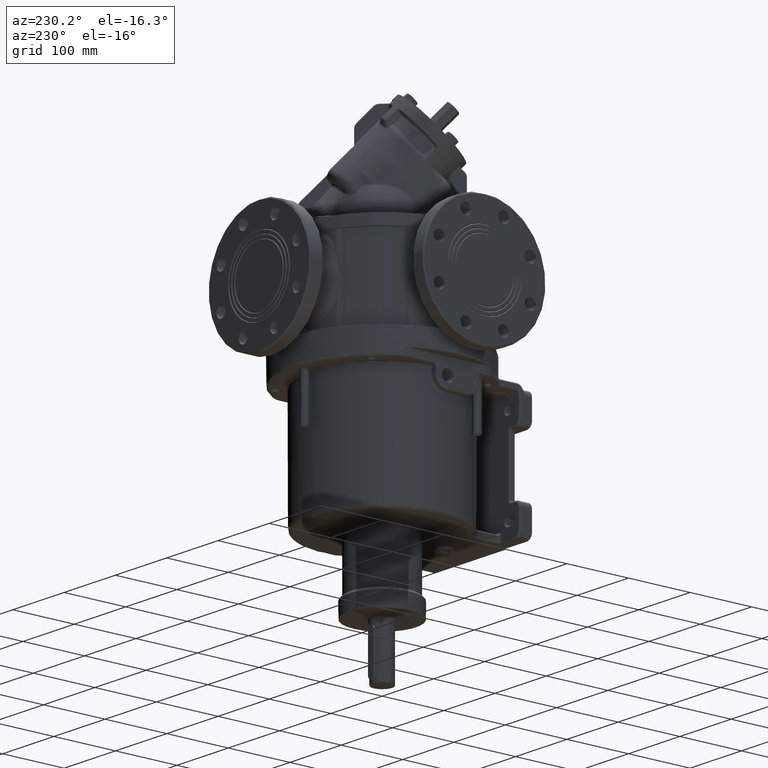
[diagram: clean part render]
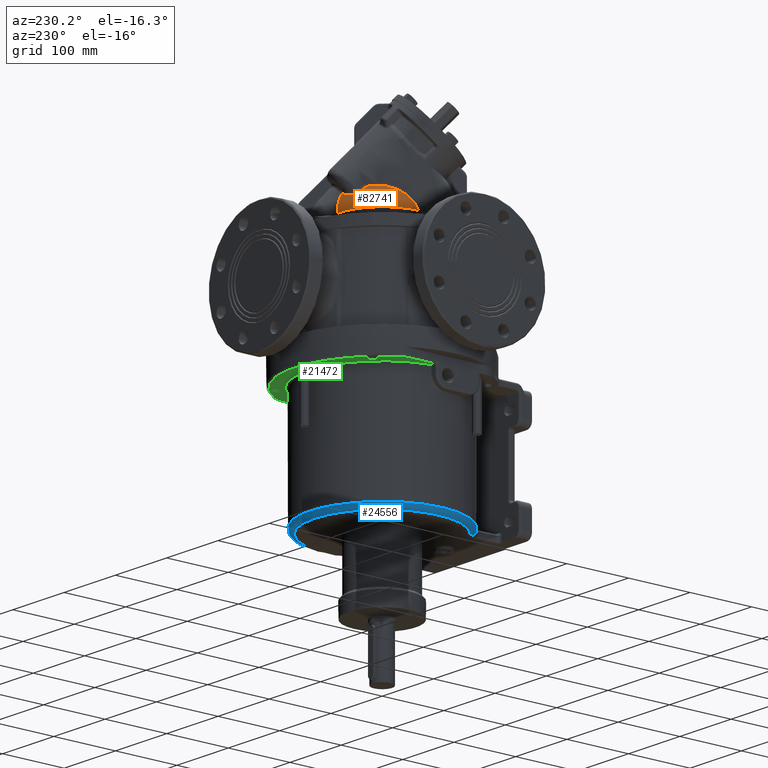
[diagram: same view with three faces highlighted in distinct colors, each labeled with its STEP entity id]
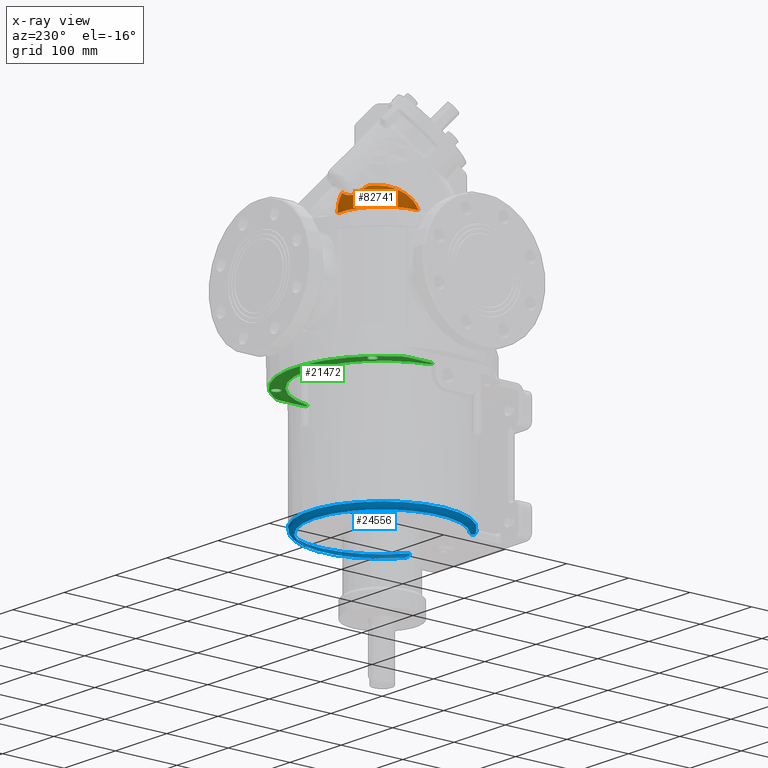
[diagram: x-ray of the same camera — body ghosted, the three highlighted faces saturated]
A machine part, auxiliary view with three faces highlighted in distinct colors.
The next image is the same camera in x-ray (body ghosted, the three faces saturated) — at least one of them is partly hidden behind the body in this view.
Their STEP definitions:

[orange] entity #82741 — the highlighted face is a freeform B-spline surface patch.
#60584=CARTESIAN_POINT('',(6.522660458262E0,5.896880067050E1,2.317118267764E2));
#60800=CARTESIAN_POINT('',(7.938379405902E0,5.852198344473E1,2.323939869038E2));
#60801=CARTESIAN_POINT('',(7.781147225142E0,5.857351991419E1,2.323195900413E2));
#60802=CARTESIAN_POINT('',(7.466615513412E0,5.867535415116E1,2.321698265142E2));
#60803=CARTESIAN_POINT('',(6.994729093487E0,5.882428366357E1,2.319424624186E2));
#60804=CARTESIAN_POINT('',(6.679870660682E0,5.892110167919E1,2.317889271605E2));
#60805=CARTESIAN_POINT('',(6.522660458262E0,5.896880067050E1,2.317118267764E2));
#60807=CARTESIAN_POINT('',(-2.338432691236E1,5.505795744733E1,
2.283750721019E2));
#60808=CARTESIAN_POINT('',(-2.325135002174E1,5.518920200188E1,
2.282094880928E2));
#60809=CARTESIAN_POINT('',(-2.296970235067E1,5.545207376472E1,
2.278859519292E2));
#60810=CARTESIAN_POINT('',(-2.250552827894E1,5.584244066650E1,
2.274297381625E2));
#60811=CARTESIAN_POINT('',(-2.199750742149E1,5.622975931576E1,
2.270020290144E2));
#60812=CARTESIAN_POINT('',(-2.144607106994E1,5.661274769651E1,
2.266046603547E2));
#60813=CARTESIAN_POINT('',(-2.085095018137E1,5.699049571884E1,
2.262390633717E2));
#60814=CARTESIAN_POINT('',(-2.021118418312E1,5.736230700692E1,
2.259065176024E2));
#60815=CARTESIAN_POINT('',(-1.952590026650E1,5.772716905817E1,
2.256086734848E2));
#60816=CARTESIAN_POINT('',(-1.879393649246E1,5.808396527777E1,
2.253473411987E2));
#60817=CARTESIAN_POINT('',(-1.801398555496E1,5.843136656963E1,
2.251245762613E2));
#60818=CARTESIAN_POINT('',(-1.718454522059E1,5.876782686516E1,
2.249426715067E2));
#60819=CARTESIAN_POINT('',(-1.630407025950E1,5.909148834261E1,
2.248041998064E2));
#60820=CARTESIAN_POINT('',(-1.537229147843E1,5.939972908974E1,
2.247121171698E2));
#60821=CARTESIAN_POINT('',(-1.439144399739E1,5.968903847067E1,
2.246693917364E2));
#60822=CARTESIAN_POINT('',(-1.336547520842E1,5.995566342676E1,
2.246783236995E2));
#60823=CARTESIAN_POINT('',(-1.229821339400E1,6.019622750529E1,
2.247403807142E2));
#60824=CARTESIAN_POINT('',(-1.119245115380E1,6.040778945256E1,
2.248565018305E2));
#60825=CARTESIAN_POINT('',(-1.005079011459E1,6.058753209639E1,
2.250272391470E2));
#60826=CARTESIAN_POINT('',(-8.876244507135E0,6.073266266327E1,
2.252526939231E2));
#60827=CARTESIAN_POINT('',(-7.672126805967E0,6.084048120355E1,
2.255324962845E2));
#60828=CARTESIAN_POINT('',(-6.441977391603E0,6.090843119174E1,
2.258658024172E2));
#60829=CARTESIAN_POINT('',(-5.189462158864E0,6.093414158855E1,
2.262513203691E2));
#60830=CARTESIAN_POINT('',(-3.918269453934E0,6.091545349335E1,
2.266873578935E2));
#60831=CARTESIAN_POINT('',(-2.632010995276E0,6.085043019358E1,
2.271718877715E2));
#60832=CARTESIAN_POINT('',(-1.334135019183E0,6.073735071676E1,
2.277026237053E2));
#60833=CARTESIAN_POINT('',(-2.785959289929E-2,6.057468942560E1,
2.282770982113E2));
#60834=CARTESIAN_POINT('',(1.283876060487E0,6.036108350853E1,2.288927390390E2));
#60835=CARTESIAN_POINT('',(2.598428637535E0,6.009529765874E1,2.295469290888E2));
#60836=CARTESIAN_POINT('',(3.913473765335E0,5.977617173082E1,2.302370772752E2));
#60837=CARTESIAN_POINT('',(5.226898753970E0,5.940262610170E1,2.309605784058E2));
#60838=CARTESIAN_POINT('',(6.091204434045E0,5.911952176613E1,2.314583261695E2));
#60839=CARTESIAN_POINT('',(6.522660458262E0,5.896880067050E1,2.317118267764E2));
#60841=CARTESIAN_POINT('',(-3.038322683681E1,4.773240550133E1,
2.350480605883E2));
#60842=CARTESIAN_POINT('',(-3.017371046826E1,4.796177303015E1,
2.349026945747E2));
#60843=CARTESIAN_POINT('',(-2.975932823870E1,4.841316669170E1,
2.346075409583E2));
#60844=CARTESIAN_POINT('',(-2.915227288230E1,4.906847361925E1,
2.341522775928E2));
#60845=CARTESIAN_POINT('',(-2.855945530700E1,4.970306583495E1,
2.336846317309E2));
#60846=CARTESIAN_POINT('',(-2.798074897815E1,5.031777061491E1,
2.332048285680E2));
#60847=CARTESIAN_POINT('',(-2.741591789379E1,5.091343942084E1,
2.327130225367E2));
#60848=CARTESIAN_POINT('',(-2.686475664250E1,5.149082760668E1,
2.322093594439E2));
#60849=CARTESIAN_POINT('',(-2.632689131564E1,5.205078572738E1,
2.316938449876E2));
#60850=CARTESIAN_POINT('',(-2.580151182087E1,5.259456207816E1,
2.311659559819E2));
#60851=CARTESIAN_POINT('',(-2.528883641208E1,5.312226209930E1,
2.306261673121E2));
#60852=CARTESIAN_POINT('',(-2.478970585862E1,5.363333706285E1,
2.300756952119E2));
#60853=CARTESIAN_POINT('',(-2.430492708626E1,5.412719840987E1,
2.295160354328E2));
#60854=CARTESIAN_POINT('',(-2.383528085505E1,5.460332799863E1,
2.289487142882E2));
#60855=CARTESIAN_POINT('',(-2.353286888763E1,5.490838304052E1,
2.285669221733E2));
#60856=CARTESIAN_POINT('',(-2.338432691236E1,5.505795744733E1,
2.283750721019E2));
#60858=CARTESIAN_POINT('',(-3.392959759135E1,4.521012606041E1,
2.350726596501E2));
#60859=CARTESIAN_POINT('',(-3.373587413527E1,4.536124177319E1,
2.350676559063E2));
#60860=CARTESIAN_POINT('',(-3.332690433391E1,4.567495243457E1,
2.350592524681E2));
#60861=CARTESIAN_POINT('',(-3.265843972460E1,4.616954389789E1,
2.350520383869E2));
#60862=CARTESIAN_POINT('',(-3.189965177879E1,4.671011332344E1,
2.350498458142E2));
#60863=CARTESIAN_POINT('',(-3.109289809774E1,4.726279540304E1,
2.350504600581E2));
#60864=CARTESIAN_POINT('',(-3.061446486119E1,4.758038484807E1,
2.350494985215E2));
#60865=CARTESIAN_POINT('',(-3.038322683681E1,4.773240550133E1,
2.350480605883E2));
#60867=CARTESIAN_POINT('',(-3.618500232117E1,4.335268823239E1,
2.351433174127E2));
#60868=CARTESIAN_POINT('',(-3.609745550065E1,4.343035271335E1,
2.351378197685E2));
#60869=CARTESIAN_POINT('',(-3.591071175039E1,4.359464427942E1,
2.351265886225E2));
#60870=CARTESIAN_POINT('',(-3.560505842143E1,4.385870602661E1,
2.351104949397E2));
#60871=CARTESIAN_POINT('',(-3.526215193123E1,4.414842012201E1,
2.350958589064E2));
#60872=CARTESIAN_POINT('',(-3.487579213790E1,4.446673554866E1,
2.350837367298E2));
#60873=CARTESIAN_POINT('',(-3.443848399930E1,4.481730493713E1,
2.350749932736E2));
#60874=CARTESIAN_POINT('',(-3.410596514658E1,4.507565418060E1,
2.350725590160E2));
#60875=CARTESIAN_POINT('',(-3.392959759135E1,4.521012606041E1,
2.350726596501E2));
#60877=CARTESIAN_POINT('',(-3.767890463154E1,4.200347552023E1,
2.352080554948E2));
#60878=CARTESIAN_POINT('',(-3.751079274896E1,4.215801644304E1,
2.352041504435E2));
#60879=CARTESIAN_POINT('',(-3.717604817168E1,4.246385031715E1,
2.351940454442E2));
#60880=CARTESIAN_POINT('',(-3.668281036717E1,4.290908383454E1,
2.351727240932E2));
#60881=CARTESIAN_POINT('',(-3.635164060777E1,4.320488095429E1,
2.351538032914E2));
#60882=CARTESIAN_POINT('',(-3.618500232117E1,4.335268823239E1,
2.351433174127E2));
#60884=CARTESIAN_POINT('',(-6.507010351213E1,-4.655783322381E0,2.05E2));
#60885=CARTESIAN_POINT('',(-6.507314746008E1,-4.552752026467E0,
2.052176725270E2));
#60886=CARTESIAN_POINT('',(-6.507658935677E1,-4.343094027367E0,
2.056510514778E2));
#60887=CARTESIAN_POINT('',(-6.507384546607E1,-4.017775804004E0,
2.062957096815E2));
#60888=CARTESIAN_POINT('',(-6.506321518860E1,-3.681866634071E0,
2.069347938081E2));
#60889=CARTESIAN_POINT('',(-6.504472093919E1,-3.335620237785E0,
2.075681618432E2));
#60890=CARTESIAN_POINT('',(-6.501838609738E1,-2.979277959455E0,
2.081957085667E2));
#60891=CARTESIAN_POINT('',(-6.498420994225E1,-2.612833495489E0,
2.088177208264E2));
#60892=CARTESIAN_POINT('',(-6.494217566291E1,-2.236291244860E0,
2.094343987472E2));
#60893=CARTESIAN_POINT('',(-6.489226021146E1,-1.849695972066E0,
2.100458255057E2));
#60894=CARTESIAN_POINT('',(-6.483441726914E1,-1.452974680075E0,
2.106522208596E2));
#60895=CARTESIAN_POINT('',(-6.476851530399E1,-1.045664774663E0,
2.112543607877E2));
#60896=CARTESIAN_POINT('',(-6.469439505357E1,-6.273835946509E-1,
2.118528075542E2));
#60897=CARTESIAN_POINT('',(-6.461190668292E1,-1.979406626783E-1,
2.124477719359E2));
#60898=CARTESIAN_POINT('',(-6.452087439083E1,2.428883509229E-1,
2.130394834517E2));
#60899=CARTESIAN_POINT('',(-6.442110151159E1,6.953485754429E-1,
2.136281268292E2));
#60900=CARTESIAN_POINT('',(-6.431236311025E1,1.159761923309E0,
2.142138983341E2));
#60901=CARTESIAN_POINT('',(-6.419428591795E1,1.636916468746E0,
2.147975641680E2));
#60902=CARTESIAN_POINT('',(-6.406644941489E1,2.127599783114E0,
2.153797685059E2));
#60903=CARTESIAN_POINT('',(-6.392840456223E1,2.632531361867E0,
2.159609959821E2));
#60904=CARTESIAN_POINT('',(-6.377965816140E1,3.152436625414E0,2.165416625E2));
#60905=CARTESIAN_POINT('',(-6.361964210314E1,3.688144227428E0,
2.171222199584E2));
#60906=CARTESIAN_POINT('',(-6.344774480534E1,4.240493569974E0,
2.177030094648E2));
#60907=CARTESIAN_POINT('',(-6.326323026986E1,4.810541636737E0,
2.182845335559E2));
#60908=CARTESIAN_POINT('',(-6.306526854429E1,5.399428006618E0,
2.188672859312E2));
#60909=CARTESIAN_POINT('',(-6.285299412814E1,6.008213185783E0,
2.194515556074E2));
#60910=CARTESIAN_POINT('',(-6.262552885243E1,6.637838106419E0,
2.200374013244E2));
#60911=CARTESIAN_POINT('',(-6.238178766713E1,7.289611493856E0,
2.206251648298E2));
#60912=CARTESIAN_POINT('',(-6.212045109305E1,7.965232591712E0,
2.212153847227E2));
#60913=CARTESIAN_POINT('',(-6.184010907841E1,8.666383176985E0,
2.218083821102E2));
#60914=CARTESIAN_POINT('',(-6.153927536839E1,9.394617667461E0,
2.224042849440E2));
#60915=CARTESIAN_POINT('',(-6.121614800444E1,1.015195567175E1,
2.230034829954E2));
#60916=CARTESIAN_POINT('',(-6.086771160320E1,1.094281272443E1,
2.236079641785E2));
#60917=CARTESIAN_POINT('',(-6.049103817999E1,1.177067090849E1,
2.242185314488E2));
#60918=CARTESIAN_POINT('',(-6.008668525868E1,1.263113679373E1,
2.248302145009E2));
#60919=CARTESIAN_POINT('',(-5.965532451924E1,1.352001867905E1,
2.254386667924E2));
#60920=CARTESIAN_POINT('',(-5.920028627457E1,1.442828671964E1,
2.260367808384E2));
#60921=CARTESIAN_POINT('',(-5.872533954053E1,1.534711623888E1,
2.266186907602E2));
#60922=CARTESIAN_POINT('',(-5.822950055366E1,1.627746357396E1,
2.271851141998E2));
#60923=CARTESIAN_POINT('',(-5.771201355162E1,1.721964938411E1,
2.277361243440E2));
#60924=CARTESIAN_POINT('',(-5.717318159743E1,1.817201358721E1,
2.282707311726E2));
#60925=CARTESIAN_POINT('',(-5.661291041744E1,1.913370421284E1,
2.287884830188E2));
#60926=CARTESIAN_POINT('',(-5.603041579854E1,2.010496614232E1,
2.292895581385E2));
#60927=CARTESIAN_POINT('',(-5.542537729356E1,2.108515824346E1,
2.297736709911E2));
#60928=CARTESIAN_POINT('',(-5.479763148869E1,2.207335276984E1,
2.302404587956E2));
#60929=CARTESIAN_POINT('',(-5.414731065495E1,2.306822565813E1,
2.306893594290E2));
#60930=CARTESIAN_POINT('',(-5.347457330880E1,2.406848439673E1,
2.311198834336E2));
#60931=CARTESIAN_POINT('',(-5.277945994775E1,2.507309981808E1,
2.315316370956E2));
#60932=CARTESIAN_POINT('',(-5.206252410205E1,2.608031413699E1,
2.319240490608E2));
#60933=CARTESIAN_POINT('',(-5.132429133202E1,2.708861392501E1,
2.322966159926E2));
#60934=CARTESIAN_POINT('',(-5.056472625839E1,2.809726134544E1,
2.326492300185E2));
#60935=CARTESIAN_POINT('',(-4.978401547905E1,2.910524073378E1,
2.329816898147E2));
#60936=CARTESIAN_POINT('',(-4.898289755711E1,3.011094685528E1,
2.332935401942E2));
#60937=CARTESIAN_POINT('',(-4.816379065657E1,3.111097536821E1,
2.335837544036E2));
#60938=CARTESIAN_POINT('',(-4.732885612513E1,3.210266792329E1,
2.338515716082E2));
#60939=CARTESIAN_POINT('',(-4.648006081922E1,3.308398858065E1,
2.340963548299E2));
#60940=CARTESIAN_POINT('',(-4.561818770544E1,3.405440747245E1,
2.343179300726E2));
#60941=CARTESIAN_POINT('',(-4.474474126910E1,3.501268667749E1,
2.345159293849E2));
#60942=CARTESIAN_POINT('',(-4.386148624298E1,3.595748993194E1,
2.346900074071E2));
#60943=CARTESIAN_POINT('',(-4.296948934007E1,3.688836315879E1,
2.348399756063E2));
#60944=CARTESIAN_POINT('',(-4.207198052925E1,3.780275791841E1,
2.349653411089E2));
#60945=CARTESIAN_POINT('',(-4.117353558907E1,3.869710739700E1,
2.350656735288E2));
#60946=CARTESIAN_POINT('',(-4.028080218361E1,3.956654178616E1,
2.351403343810E2));
#60947=CARTESIAN_POINT('',(-3.939894681317E1,4.040807726460E1,
2.351893387117E2));
#60948=CARTESIAN_POINT('',(-3.852977851276E1,4.122210995856E1,
2.352130759735E2));
#60949=CARTESIAN_POINT('',(-3.796072281619E1,4.174600669435E1,
2.352124018135E2));
#60950=CARTESIAN_POINT('',(-3.767890463154E1,4.200347552023E1,
2.352080554948E2));
#60952=CARTESIAN_POINT('',(2.654807156151E0,-2.654807156151E0,2.05E2));
#60953=DIRECTION('',(0.E0,0.E0,1.E0));
#60954=DIRECTION('',(1.027890600552E-1,9.947031763963E-1,0.E0));
#60955=AXIS2_PLACEMENT_3D('',#60952,#60953,#60954);
#60957=CARTESIAN_POINT('',(7.938379405902E0,5.852198344473E1,2.323939869038E2));
#60958=CARTESIAN_POINT('',(7.995487844386E0,5.861062050109E1,2.322016814358E2));
#60959=CARTESIAN_POINT('',(8.106723077489E0,5.878738968252E1,2.318135938165E2));
#60960=CARTESIAN_POINT('',(8.264630288184E0,5.905073264246E1,2.312211602957E2));
#60961=CARTESIAN_POINT('',(8.413782205665E0,5.931226937232E1,2.306178540141E2));
#60962=CARTESIAN_POINT('',(8.554324884173E0,5.957189782604E1,2.300032654358E2));
#60963=CARTESIAN_POINT('',(8.686400205662E0,5.982951169779E1,2.293769352556E2));
#60964=CARTESIAN_POINT('',(8.810134383101E0,6.008497787272E1,2.287383969123E2));
#60965=CARTESIAN_POINT('',(8.925647665124E0,6.033811769407E1,2.280872248872E2));
#60966=CARTESIAN_POINT('',(9.033117013471E0,6.058885978491E1,2.274226291688E2));
#60967=CARTESIAN_POINT('',(9.132731452985E0,6.083717207552E1,2.267435781733E2));
#60968=CARTESIAN_POINT('',(9.224646336831E0,6.108296174245E1,2.260490447078E2));
#60969=CARTESIAN_POINT('',(9.308973840067E0,6.132604260392E1,2.253380988032E2));
#60970=CARTESIAN_POINT('',(9.385791388107E0,6.156607128616E1,2.246101157470E2));
#60971=CARTESIAN_POINT('',(9.455193283449E0,6.180267161006E1,2.238644334696E2));
#60972=CARTESIAN_POINT('',(9.517251889207E0,6.203544096427E1,2.231003315366E2));
#60973=CARTESIAN_POINT('',(9.572072067536E0,6.226398011638E1,2.223168876929E2));
#60974=CARTESIAN_POINT('',(9.619773427483E0,6.248781245752E1,2.215132162475E2));
#60975=CARTESIAN_POINT('',(9.660465429963E0,6.270641326211E1,2.206883745437E2));
#60976=CARTESIAN_POINT('',(9.694289881829E0,6.291920137026E1,2.198413461509E2));
#60977=CARTESIAN_POINT('',(9.721416988620E0,6.312550559015E1,2.189711557665E2));
#60978=CARTESIAN_POINT('',(9.742016642272E0,6.332460792518E1,2.180766870965E2));
#60979=CARTESIAN_POINT('',(9.756317204275E0,6.351570532265E1,2.171567627849E2));
#60980=CARTESIAN_POINT('',(9.764575865464E0,6.369788591605E1,2.162102478650E2));
#60981=CARTESIAN_POINT('',(9.767078550108E0,6.387012352606E1,2.152360682905E2));
#60982=CARTESIAN_POINT('',(9.764208951750E0,6.403125195660E1,2.142333593027E2));
#60983=CARTESIAN_POINT('',(9.756386747573E0,6.418011602912E1,2.132005090231E2));
#60984=CARTESIAN_POINT('',(9.744087678200E0,6.431552780647E1,2.121348680270E2));
#60985=CARTESIAN_POINT('',(9.727895742302E0,6.443605787372E1,2.110336302461E2));
#60986=CARTESIAN_POINT('',(9.708497334279E0,6.453980802050E1,2.098963878911E2));
#60987=CARTESIAN_POINT('',(9.686764710986E0,6.462469943983E1,2.087240860719E2));
#60988=CARTESIAN_POINT('',(9.663756310191E0,6.468865592129E1,2.075174058074E2));
#60989=CARTESIAN_POINT('',(9.640641641261E0,6.472956125800E1,2.062775017724E2));
#60990=CARTESIAN_POINT('',(9.626058883155E0,6.474006723611E1,2.054295487143E2));
#60991=CARTESIAN_POINT('',(9.619224854622E0,6.474077368388E1,2.05E2));
#77568=CARTESIAN_POINT('',(9.619224854622E0,6.474077368388E1,2.05E2));
#77569=CARTESIAN_POINT('',(-6.507010351213E1,-4.655783322385E0,2.05E2));
#77570=VERTEX_POINT('',#77568);
#77571=VERTEX_POINT('',#77569);
#77671=VERTEX_POINT('',#60957);
#77675=CARTESIAN_POINT('',(-2.338432691236E1,5.505795744733E1,
2.283750721019E2));
#77676=VERTEX_POINT('',#77675);
#77680=VERTEX_POINT('',#60867);
#77681=VERTEX_POINT('',#60875);
#77684=VERTEX_POINT('',#60950);
#77707=VERTEX_POINT('',#60841);
#77889=VERTEX_POINT('',#60584);
#82707=CARTESIAN_POINT('',(-6.496016998008E1,-6.963935582984E0,
2.044639037854E2));
#82708=CARTESIAN_POINT('',(-6.790249188291E1,3.926347312106E1,
2.040093965795E2));
#82709=CARTESIAN_POINT('',(-3.396497147954E1,7.079252898548E1,
2.040316595546E2));
#82710=CARTESIAN_POINT('',(1.192094481170E1,6.446111063070E1,2.045143377100E2));
#82711=CARTESIAN_POINT('',(-6.504775605627E1,-6.876349506789E0,
2.139391853982E2));
#82712=CARTESIAN_POINT('',(-6.806433422447E1,3.942531546262E1,
2.215179074039E2));
#82713=CARTESIAN_POINT('',(-3.412317655118E1,7.095073405712E1,
2.211466813879E2));
#82714=CARTESIAN_POINT('',(1.184159850560E1,6.454045693679E1,2.130982203067E2));
#82715=CARTESIAN_POINT('',(-6.289680889387E1,-9.027296669192E0,
2.229137693379E2));
#82716=CARTESIAN_POINT('',(-6.408979465776E1,3.545077589591E1,
2.381012245522E2));
#82717=CARTESIAN_POINT('',(-3.023796140388E1,6.706551890983E1,
2.373573024914E2));
#82718=CARTESIAN_POINT('',(1.379019261271E1,6.259186282968E1,2.212285089928E2));
#82719=CARTESIAN_POINT('',(-5.875339835902E1,-1.317070720405E1,
2.303609568985E2));
#82720=CARTESIAN_POINT('',(-5.643356330082E1,2.779454453897E1,
2.518622048950E2));
#82721=CARTESIAN_POINT('',(-2.275379737937E1,5.958135488532E1,
2.508090164251E2));
#82722=CARTESIAN_POINT('',(1.754380659852E1,5.883824884387E1,2.279750930320E2));
#82723=(BOUNDED_SURFACE()B_SPLINE_SURFACE(3,3,((#82707,#82708,#82709,#82710),(
#82711,#82712,#82713,#82714),(#82715,#82716,#82717,#82718),(#82719,#82720,
#82721,#82722)),.UNSPECIFIED.,.F.,.F.,.F.)B_SPLINE_SURFACE_WITH_KNOTS((4,4),(4,
4),(0.E0,1.E0),(0.E0,1.E0),.UNSPECIFIED.)GEOMETRIC_REPRESENTATION_ITEM()RATIONAL_B_SPLINE_SURFACE(((1.261041216478E0,9.522425658377E-1,9.522425658377E-1,
1.261041216478E0),(1.212953216183E0,9.159301597176E-1,9.159301597176E-1,
1.212953216183E0),(1.212953216183E0,9.159301597176E-1,9.159301597176E-1,
1.212953216183E0),(1.261041216478E0,9.522425658377E-1,9.522425658377E-1,
1.261041216478E0)))REPRESENTATION_ITEM('')SURFACE());
#82724=ORIENTED_EDGE('',*,*,#82521,.T.);
#82725=ORIENTED_EDGE('',*,*,#82431,.F.);
#82727=ORIENTED_EDGE('',*,*,#82726,.F.);
#82729=ORIENTED_EDGE('',*,*,#82728,.F.);
#82731=ORIENTED_EDGE('',*,*,#82730,.F.);
#82733=ORIENTED_EDGE('',*,*,#82732,.F.);
#82735=ORIENTED_EDGE('',*,*,#82734,.F.);
#82737=ORIENTED_EDGE('',*,*,#82736,.F.);
#82738=ORIENTED_EDGE('',*,*,#82698,.F.);
#82739=EDGE_LOOP('',(#82724,#82725,#82727,#82729,#82731,#82733,#82735,#82737,
#82738));
#82740=FACE_OUTER_BOUND('',#82739,.F.);
#82741=ADVANCED_FACE('',(#82740),#82723,.T.);
#60806=B_SPLINE_CURVE_WITH_KNOTS('',3,(#60800,#60801,#60802,#60803,#60804,
#60805),.UNSPECIFIED.,.F.,.F.,(4,1,1,4),(0.E0,3.333333333333E-1,
6.666666666667E-1,1.E0),.UNSPECIFIED.);
#60840=B_SPLINE_CURVE_WITH_KNOTS('',3,(#60807,#60808,#60809,#60810,#60811,
#60812,#60813,#60814,#60815,#60816,#60817,#60818,#60819,#60820,#60821,#60822,
#60823,#60824,#60825,#60826,#60827,#60828,#60829,#60830,#60831,#60832,#60833,
#60834,#60835,#60836,#60837,#60838,#60839),.UNSPECIFIED.,.F.,.F.,(4,1,1,1,1,1,1,
1,1,1,1,1,1,1,1,1,1,1,1,1,1,1,1,1,1,1,1,1,1,1,4),(0.E0,1.951440089199E-2,
3.932816857176E-2,5.945689904206E-2,7.994662419930E-2,1.009273046400E-1,
1.224947050286E-1,1.447628572338E-1,1.678483686816E-1,1.918766074468E-1,
2.169798791765E-1,2.433011781542E-1,2.709817576463E-1,3.000560975151E-1,
3.304655910052E-1,3.622159455271E-1,3.953552935960E-1,4.299116668673E-1,
4.658984531126E-1,5.033132894288E-1,5.421399553970E-1,5.823505813942E-1,
6.239085487759E-1,6.667717352816E-1,7.108957253956E-1,7.562368531355E-1,
8.027547246478E-1,8.504143265665E-1,8.991876385855E-1,9.490529290461E-1,1.E0),
.UNSPECIFIED.);
#60857=B_SPLINE_CURVE_WITH_KNOTS('',3,(#60841,#60842,#60843,#60844,#60845,
#60846,#60847,#60848,#60849,#60850,#60851,#60852,#60853,#60854,#60855,#60856),
.UNSPECIFIED.,.F.,.F.,(4,1,1,1,1,1,1,1,1,1,1,1,1,4),(0.E0,7.692307692308E-2,
1.538461538462E-1,2.307692307692E-1,3.076923076923E-1,3.846153846154E-1,
4.615384615385E-1,5.384615384615E-1,6.153846153846E-1,6.923076923077E-1,
7.692307692308E-1,8.461538461538E-1,9.230769230769E-1,1.E0),.UNSPECIFIED.);
#60866=B_SPLINE_CURVE_WITH_KNOTS('',3,(#60858,#60859,#60860,#60861,#60862,
#60863,#60864,#60865),.UNSPECIFIED.,.F.,.F.,(4,1,1,1,1,4),(0.E0,2.E-1,4.E-1,
6.E-1,8.E-1,1.E0),.UNSPECIFIED.);
#60876=B_SPLINE_CURVE_WITH_KNOTS('',3,(#60867,#60868,#60869,#60870,#60871,
#60872,#60873,#60874,#60875),.UNSPECIFIED.,.F.,.F.,(4,1,1,1,1,1,4),(0.E0,
1.666666666667E-1,3.333333333333E-1,5.E-1,6.666666666667E-1,8.333333333333E-1,
1.E0),.UNSPECIFIED.);
#60883=B_SPLINE_CURVE_WITH_KNOTS('',3,(#60877,#60878,#60879,#60880,#60881,
#60882),.UNSPECIFIED.,.F.,.F.,(4,1,1,4),(0.E0,3.333333333333E-1,
6.666666666667E-1,1.E0),.UNSPECIFIED.);
#60951=B_SPLINE_CURVE_WITH_KNOTS('',3,(#60884,#60885,#60886,#60887,#60888,
#60889,#60890,#60891,#60892,#60893,#60894,#60895,#60896,#60897,#60898,#60899,
#60900,#60901,#60902,#60903,#60904,#60905,#60906,#60907,#60908,#60909,#60910,
#60911,#60912,#60913,#60914,#60915,#60916,#60917,#60918,#60919,#60920,#60921,
#60922,#60923,#60924,#60925,#60926,#60927,#60928,#60929,#60930,#60931,#60932,
#60933,#60934,#60935,#60936,#60937,#60938,#60939,#60940,#60941,#60942,#60943,
#60944,#60945,#60946,#60947,#60948,#60949,#60950),.UNSPECIFIED.,.F.,.F.,(4,1,1,
1,1,1,1,1,1,1,1,1,1,1,1,1,1,1,1,1,1,1,1,1,1,1,1,1,1,1,1,1,1,1,1,1,1,1,1,1,1,1,1,
1,1,1,1,1,1,1,1,1,1,1,1,1,1,1,1,1,1,1,1,1,4),(0.E0,1.5625E-2,3.125E-2,4.6875E-2,
6.25E-2,7.8125E-2,9.375E-2,1.09375E-1,1.25E-1,1.40625E-1,1.5625E-1,1.71875E-1,
1.875E-1,2.03125E-1,2.1875E-1,2.34375E-1,2.5E-1,2.65625E-1,2.8125E-1,2.96875E-1,
3.125E-1,3.28125E-1,3.4375E-1,3.59375E-1,3.75E-1,3.90625E-1,4.0625E-1,
4.21875E-1,4.375E-1,4.53125E-1,4.6875E-1,4.84375E-1,5.E-1,5.15625E-1,5.3125E-1,
5.46875E-1,5.625E-1,5.78125E-1,5.9375E-1,6.09375E-1,6.25E-1,6.40625E-1,
6.5625E-1,6.71875E-1,6.875E-1,7.03125E-1,7.1875E-1,7.34375E-1,7.5E-1,7.65625E-1,
7.8125E-1,7.96875E-1,8.125E-1,8.28125E-1,8.4375E-1,8.59375E-1,8.75E-1,
8.90625E-1,9.0625E-1,9.21875E-1,9.375E-1,9.53125E-1,9.6875E-1,9.84375E-1,1.E0),
.UNSPECIFIED.);
#60956=CIRCLE('',#60955,6.775446428571E1);
#60992=B_SPLINE_CURVE_WITH_KNOTS('',3,(#60957,#60958,#60959,#60960,#60961,
#60962,#60963,#60964,#60965,#60966,#60967,#60968,#60969,#60970,#60971,#60972,
#60973,#60974,#60975,#60976,#60977,#60978,#60979,#60980,#60981,#60982,#60983,
#60984,#60985,#60986,#60987,#60988,#60989,#60990,#60991),.UNSPECIFIED.,.F.,.F.,(
4,1,1,1,1,1,1,1,1,1,1,1,1,1,1,1,1,1,1,1,1,1,1,1,1,1,1,1,1,1,1,1,4),(0.E0,
3.125E-2,6.25E-2,9.375E-2,1.25E-1,1.5625E-1,1.875E-1,2.1875E-1,2.5E-1,2.8125E-1,
3.125E-1,3.4375E-1,3.75E-1,4.0625E-1,4.375E-1,4.6875E-1,5.E-1,5.3125E-1,
5.625E-1,5.9375E-1,6.25E-1,6.5625E-1,6.875E-1,7.1875E-1,7.5E-1,7.8125E-1,
8.125E-1,8.4375E-1,8.75E-1,9.0625E-1,9.375E-1,9.6875E-1,1.E0),.UNSPECIFIED.);
#82431=EDGE_CURVE('',#77676,#77889,#60840,.T.);
#82521=EDGE_CURVE('',#77671,#77889,#60806,.T.);
#82698=EDGE_CURVE('',#77671,#77570,#60992,.T.);
#82726=EDGE_CURVE('',#77707,#77676,#60857,.T.);
#82728=EDGE_CURVE('',#77681,#77707,#60866,.T.);
#82730=EDGE_CURVE('',#77680,#77681,#60876,.T.);
#82732=EDGE_CURVE('',#77684,#77680,#60883,.T.);
#82734=EDGE_CURVE('',#77571,#77684,#60951,.T.);
#82736=EDGE_CURVE('',#77570,#77571,#60956,.T.);

[blue] entity #24556 — the highlighted toroidal blend (fillet) surface has major radius 110 mm and minor (blend) radius 8 mm.
#5338=CARTESIAN_POINT('',(7.000000410274E1,-8.485280705635E1,
-2.020000004968E2));
#5769=CARTESIAN_POINT('',(-7.000002259154E1,-8.485281968794E1,
-2.020000009870E2));
#5813=CARTESIAN_POINT('',(-6.453125111180E1,-9.879128316783E1,
-1.940000000042E2));
#5814=CARTESIAN_POINT('',(-6.453125767601E1,-9.879127547805E1,
-1.940740955327E2));
#5815=CARTESIAN_POINT('',(-6.453246118593E1,-9.878803495090E1,
-1.942228690590E2));
#5816=CARTESIAN_POINT('',(-6.453802540040E1,-9.877316086987E1,
-1.944475788285E2));
#5817=CARTESIAN_POINT('',(-6.454743668212E1,-9.874805326409E1,
-1.946737213823E2));
#5818=CARTESIAN_POINT('',(-6.456077528273E1,-9.871248298371E1,
-1.949011104334E2));
#5819=CARTESIAN_POINT('',(-6.457808087462E1,-9.866625540361E1,
-1.951295433081E2));
#5820=CARTESIAN_POINT('',(-6.459938186833E1,-9.860919143733E1,
-1.953587845593E2));
#5821=CARTESIAN_POINT('',(-6.462460634214E1,-9.854118097066E1,
-1.955886028595E2));
#5822=CARTESIAN_POINT('',(-6.465392211842E1,-9.846198088774E1,
-1.958187168981E2));
#5823=CARTESIAN_POINT('',(-6.468790716317E1,-9.837089141401E1,
-1.960494716599E2));
#5824=CARTESIAN_POINT('',(-6.472664137983E1,-9.826743359968E1,
-1.962812425152E2));
#5825=CARTESIAN_POINT('',(-6.477035492225E1,-9.815097155912E1,
-1.965142968342E2));
#5826=CARTESIAN_POINT('',(-6.481921736412E1,-9.802089629221E1,
-1.967487132067E2));
#5827=CARTESIAN_POINT('',(-6.487340496056E1,-9.787661782846E1,
-1.969843747582E2));
#5828=CARTESIAN_POINT('',(-6.493296953591E1,-9.771759173492E1,
-1.972211420694E2));
#5829=CARTESIAN_POINT('',(-6.499836437264E1,-9.754306277022E1,
-1.974586895817E2));
#5830=CARTESIAN_POINT('',(-6.507040202939E1,-9.735190295430E1,
-1.976968663940E2));
#5831=CARTESIAN_POINT('',(-6.514930340204E1,-9.714321036473E1,
-1.979356516066E2));
#5832=CARTESIAN_POINT('',(-6.523542541859E1,-9.691602925265E1,
-1.981748142735E2));
#5833=CARTESIAN_POINT('',(-6.532909790289E1,-9.666931475780E1,
-1.984141436738E2));
#5834=CARTESIAN_POINT('',(-6.543068072417E1,-9.640198106935E1,
-1.986533150739E2));
#5835=CARTESIAN_POINT('',(-6.554040863934E1,-9.611296874617E1,
-1.988919288533E2));
#5836=CARTESIAN_POINT('',(-6.565928402177E1,-9.580115557562E1,
-1.991290084856E2));
#5837=CARTESIAN_POINT('',(-6.578772340382E1,-9.546549844834E1,
-1.993638925579E2));
#5838=CARTESIAN_POINT('',(-6.592611578737E1,-9.510511661147E1,
-1.995957226122E2));
#5839=CARTESIAN_POINT('',(-6.607514395727E1,-9.471827284517E1,
-1.998241136457E2));
#5840=CARTESIAN_POINT('',(-6.623557533453E1,-9.430296866004E1,
-2.000486007052E2));
#5841=CARTESIAN_POINT('',(-6.640806177023E1,-9.385743286221E1,
-2.002683682845E2));
#5842=CARTESIAN_POINT('',(-6.659322528373E1,-9.338087328574E1,
-2.004818549184E2));
#5843=CARTESIAN_POINT('',(-6.679149944070E1,-9.287252284287E1,
-2.006876113976E2));
#5844=CARTESIAN_POINT('',(-6.700339973792E1,-9.233139965475E1,
-2.008842594396E2));
#5845=CARTESIAN_POINT('',(-6.722949487279E1,-9.175634406005E1,
-2.010704359158E2));
#5846=CARTESIAN_POINT('',(-6.747025692116E1,-9.114614258601E1,
-2.012447482969E2));
#5847=CARTESIAN_POINT('',(-6.772646701121E1,-9.049911284921E1,
-2.014057689439E2));
#5848=CARTESIAN_POINT('',(-6.799895579750E1,-8.981377427352E1,
-2.015518395871E2));
#5849=CARTESIAN_POINT('',(-6.828858870365E1,-8.908855901104E1,
-2.016811960217E2));
#5850=CARTESIAN_POINT('',(-6.859553868810E1,-8.832281632166E1,
-2.017918531184E2));
#5851=CARTESIAN_POINT('',(-6.891978725642E1,-8.751681241396E1,
-2.018816473590E2));
#5852=CARTESIAN_POINT('',(-6.926159761858E1,-8.667076174522E1,
-2.019484580499E2));
#5853=CARTESIAN_POINT('',(-6.962063819865E1,-8.578498761975E1,
-2.019902359406E2));
#5854=CARTESIAN_POINT('',(-6.987168711745E1,-8.516782564432E1,
-2.020000013881E2));
#5855=CARTESIAN_POINT('',(-7.000002259154E1,-8.485281968794E1,
-2.020000009870E2));
#5857=CARTESIAN_POINT('',(0.E0,-2.473785534278E-14,-2.02E2));
#5858=DIRECTION('',(0.E0,0.E0,-1.E0));
#5859=DIRECTION('',(-6.363645381818E-1,-7.713884718770E-1,0.E0));
#5860=AXIS2_PLACEMENT_3D('',#5857,#5858,#5859);
#5862=CARTESIAN_POINT('',(7.000000410274E1,-8.485280705635E1,
-2.020000004968E2));
#5863=CARTESIAN_POINT('',(6.987163050056E1,-8.516785349746E1,
-2.020000020615E2));
#5864=CARTESIAN_POINT('',(6.962058185436E1,-8.578502360288E1,
-2.019902358836E2));
#5865=CARTESIAN_POINT('',(6.926174699265E1,-8.667051300716E1,
-2.019484660101E2));
#5866=CARTESIAN_POINT('',(6.892012858941E1,-8.751603012551E1,
-2.018817115767E2));
#5867=CARTESIAN_POINT('',(6.859593178368E1,-8.832160283534E1,
-2.017920172490E2));
#5868=CARTESIAN_POINT('',(6.828911105067E1,-8.908723386728E1,
-2.016814146725E2));
#5869=CARTESIAN_POINT('',(6.799944508294E1,-8.981291021637E1,
-2.015519849099E2));
#5870=CARTESIAN_POINT('',(6.772652718644E1,-9.049893903867E1,
-2.014058168535E2));
#5871=CARTESIAN_POINT('',(6.747002319204E1,-9.114646248526E1,
-2.012446958995E2));
#5872=CARTESIAN_POINT('',(6.722939662065E1,-9.175644370606E1,
-2.010704146735E2));
#5873=CARTESIAN_POINT('',(6.700408816515E1,-9.232989050471E1,
-2.008847155187E2));
#5874=CARTESIAN_POINT('',(6.679324054141E1,-9.286840973463E1,
-2.006890971207E2));
#5875=CARTESIAN_POINT('',(6.659592444010E1,-9.337402645532E1,
-2.004847129209E2));
#5876=CARTESIAN_POINT('',(6.641141670676E1,-9.384854644288E1,
-2.002725589497E2));
#5877=CARTESIAN_POINT('',(6.623882001409E1,-9.429407009418E1,
-2.000533009971E2));
#5878=CARTESIAN_POINT('',(6.607777260218E1,-9.471132750254E1,
-1.998280978152E2));
#5879=CARTESIAN_POINT('',(6.592805486005E1,-9.510041687587E1,
-1.995985731906E2));
#5880=CARTESIAN_POINT('',(6.578909637479E1,-9.546225262564E1,
-1.993659985337E2));
#5881=CARTESIAN_POINT('',(6.566054344142E1,-9.579796184106E1,
-1.991312953195E2));
#5882=CARTESIAN_POINT('',(6.554175982309E1,-9.610914009341E1,
-1.988950168430E2));
#5883=CARTESIAN_POINT('',(6.543182435859E1,-9.639818518878E1,
-1.986568205700E2));
#5884=CARTESIAN_POINT('',(6.532999506828E1,-9.666680967045E1,
-1.984165622106E2));
#5885=CARTESIAN_POINT('',(6.523588233239E1,-9.691489600838E1,
-1.981759585583E2));
#5886=CARTESIAN_POINT('',(6.514969123608E1,-9.714239675956E1,
-1.979364599509E2));
#5887=CARTESIAN_POINT('',(6.507092288470E1,-9.735072278921E1,
-1.976981779692E2));
#5888=CARTESIAN_POINT('',(6.499889295225E1,-9.754178337112E1,
-1.974603046867E2));
#5889=CARTESIAN_POINT('',(6.493314962366E1,-9.771696559237E1,
-1.972221285264E2));
#5890=CARTESIAN_POINT('',(6.487340056550E1,-9.787659872655E1,
-1.969844474997E2));
#5891=CARTESIAN_POINT('',(6.481906001843E1,-9.802129713848E1,
-1.967480540869E2));
#5892=CARTESIAN_POINT('',(6.477015055483E1,-9.815151936684E1,
-1.965132632474E2));
#5893=CARTESIAN_POINT('',(6.472643778031E1,-9.826798521274E1,
-1.962800703241E2));
#5894=CARTESIAN_POINT('',(6.468774937900E1,-9.837132637537E1,
-1.960484160900E2));
#5895=CARTESIAN_POINT('',(6.465383475563E1,-9.846222777305E1,
-1.958180196154E2));
#5896=CARTESIAN_POINT('',(6.462457662724E1,-9.854126461354E1,
-1.955883166226E2));
#5897=CARTESIAN_POINT('',(6.459937990350E1,-9.860920496796E1,
-1.953587345442E2));
#5898=CARTESIAN_POINT('',(6.457802660372E1,-9.866641021433E1,
-1.951289016672E2));
#5899=CARTESIAN_POINT('',(6.456067020221E1,-9.871277118787E1,
-1.948995677984E2));
#5900=CARTESIAN_POINT('',(6.454731560321E1,-9.874838013215E1,
-1.946713368496E2));
#5901=CARTESIAN_POINT('',(6.453793601956E1,-9.877340090924E1,
-1.944448536897E2));
#5902=CARTESIAN_POINT('',(6.453243422302E1,-9.878811159699E1,
-1.942206803119E2));
#5903=CARTESIAN_POINT('',(6.453125759601E1,-9.879127526237E1,
-1.940732267721E2));
#5904=CARTESIAN_POINT('',(6.453125052576E1,-9.879128355063E1,
-1.940000000042E2));
#5906=CARTESIAN_POINT('',(0.E0,-2.375813790346E-14,-1.94E2));
#5907=DIRECTION('',(0.E0,0.E0,1.E0));
#5908=DIRECTION('',(5.46875E-1,-8.372142702887E-1,0.E0));
#5909=AXIS2_PLACEMENT_3D('',#5906,#5907,#5908);
#14995=CARTESIAN_POINT('',(6.453125E1,-9.879128389406E1,-1.94E2));
#14996=CARTESIAN_POINT('',(-6.453125E1,-9.879128389406E1,-1.94E2));
#14997=VERTEX_POINT('',#14995);
#14998=VERTEX_POINT('',#14996);
#15091=VERTEX_POINT('',#5338);
#15321=VERTEX_POINT('',#5769);
#24545=CARTESIAN_POINT('',(0.E0,-2.375813790346E-14,-1.94E2));
#24546=DIRECTION('',(0.E0,0.E0,1.E0));
#24547=DIRECTION('',(9.333331978274E-4,-9.999995644445E-1,0.E0));
#24548=AXIS2_PLACEMENT_3D('',#24545,#24546,#24547);
#24549=TOROIDAL_SURFACE('',#24548,1.1E2,8.E0);
#24550=ORIENTED_EDGE('',*,*,#24442,.T.);
#24551=ORIENTED_EDGE('',*,*,#23960,.T.);
#24552=ORIENTED_EDGE('',*,*,#23846,.T.);
#24553=ORIENTED_EDGE('',*,*,#21816,.T.);
#24554=EDGE_LOOP('',(#24550,#24551,#24552,#24553));
#24555=FACE_OUTER_BOUND('',#24554,.F.);
#24556=ADVANCED_FACE('',(#24555),#24549,.T.);
#5856=B_SPLINE_CURVE_WITH_KNOTS('',3,(#5813,#5814,#5815,#5816,#5817,#5818,#5819,
#5820,#5821,#5822,#5823,#5824,#5825,#5826,#5827,#5828,#5829,#5830,#5831,#5832,
#5833,#5834,#5835,#5836,#5837,#5838,#5839,#5840,#5841,#5842,#5843,#5844,#5845,
#5846,#5847,#5848,#5849,#5850,#5851,#5852,#5853,#5854,#5855),.UNSPECIFIED.,.F.,
.F.,(4,1,1,1,1,1,1,1,1,1,1,1,1,1,1,1,1,1,1,1,1,1,1,1,1,1,1,1,1,1,1,1,1,1,1,1,1,
1,1,1,4),(0.E0,2.5E-2,5.E-2,7.5E-2,1.E-1,1.25E-1,1.5E-1,1.75E-1,2.E-1,2.25E-1,
2.5E-1,2.75E-1,3.E-1,3.25E-1,3.5E-1,3.75E-1,4.E-1,4.25E-1,4.5E-1,4.75E-1,5.E-1,
5.25E-1,5.5E-1,5.75E-1,6.E-1,6.25E-1,6.5E-1,6.75E-1,7.E-1,7.25E-1,7.5E-1,
7.75E-1,8.E-1,8.25E-1,8.5E-1,8.75E-1,9.E-1,9.25E-1,9.5E-1,9.75E-1,1.E0),
.UNSPECIFIED.);
#5861=CIRCLE('',#5860,1.1E2);
#5905=B_SPLINE_CURVE_WITH_KNOTS('',3,(#5862,#5863,#5864,#5865,#5866,#5867,#5868,
#5869,#5870,#5871,#5872,#5873,#5874,#5875,#5876,#5877,#5878,#5879,#5880,#5881,
#5882,#5883,#5884,#5885,#5886,#5887,#5888,#5889,#5890,#5891,#5892,#5893,#5894,
#5895,#5896,#5897,#5898,#5899,#5900,#5901,#5902,#5903,#5904),.UNSPECIFIED.,.F.,
.F.,(4,1,1,1,1,1,1,1,1,1,1,1,1,1,1,1,1,1,1,1,1,1,1,1,1,1,1,1,1,1,1,1,1,1,1,1,1,
1,1,1,4),(0.E0,2.5E-2,5.E-2,7.5E-2,1.E-1,1.25E-1,1.5E-1,1.75E-1,2.E-1,2.25E-1,
2.5E-1,2.75E-1,3.E-1,3.25E-1,3.5E-1,3.75E-1,4.E-1,4.25E-1,4.5E-1,4.75E-1,5.E-1,
5.25E-1,5.5E-1,5.75E-1,6.E-1,6.25E-1,6.5E-1,6.75E-1,7.E-1,7.25E-1,7.5E-1,
7.75E-1,8.E-1,8.25E-1,8.5E-1,8.75E-1,9.E-1,9.25E-1,9.5E-1,9.75E-1,1.E0),
.UNSPECIFIED.);
#5910=CIRCLE('',#5909,1.18E2);
#21816=EDGE_CURVE('',#14997,#14998,#5910,.T.);
#23846=EDGE_CURVE('',#15091,#14997,#5905,.T.);
#23960=EDGE_CURVE('',#15321,#15091,#5861,.T.);
#24442=EDGE_CURVE('',#14998,#15321,#5856,.T.);

[green] entity #21472 — the highlighted planar face has unit normal (0, 0, 1).
#3013=CARTESIAN_POINT('',(0.E0,1.26E2,-1.2E1));
#3014=DIRECTION('',(0.E0,0.E0,-1.E0));
#3015=DIRECTION('',(1.E0,0.E0,0.E0));
#3016=AXIS2_PLACEMENT_3D('',#3013,#3014,#3015);
#3018=CARTESIAN_POINT('',(0.E0,0.E0,-1.2E1));
#3019=DIRECTION('',(0.E0,0.E0,1.E0));
#3020=DIRECTION('',(9.848244039515E-1,1.735537190083E-1,0.E0));
#3021=AXIS2_PLACEMENT_3D('',#3018,#3019,#3020);
#3023=DIRECTION('',(1.E0,-3.226647832522E-10,0.E0));
#3024=VECTOR('',#3023,5.836247121871E0);
#3025=CARTESIAN_POINT('',(1.191637528781E2,2.1E1,-1.2E1));
#3026=LINE('',#3025,#3024);
#3027=DIRECTION('',(0.E0,-1.E0,0.E0));
#3028=VECTOR('',#3027,3.917474553520E1);
#3029=CARTESIAN_POINT('',(1.25E2,6.017474553332E1,-1.2E1));
#3030=LINE('',#3029,#3028);
#3031=CARTESIAN_POINT('',(9.8E1,6.017474553332E1,-1.2E1));
#3032=DIRECTION('',(0.E0,0.E0,-1.E0));
#3033=DIRECTION('',(8.521739130435E-1,5.232586568115E-1,0.E0));
#3034=AXIS2_PLACEMENT_3D('',#3031,#3032,#3033);
#3036=CARTESIAN_POINT('',(0.E0,0.E0,-1.2E1));
#3037=DIRECTION('',(0.E0,0.E0,-1.E0));
#3038=DIRECTION('',(-8.521739130435E-1,5.232586568115E-1,0.E0));
#3039=AXIS2_PLACEMENT_3D('',#3036,#3037,#3038);
#3041=CARTESIAN_POINT('',(-9.8E1,6.017474553332E1,-1.2E1));
#3042=DIRECTION('',(0.E0,0.E0,-1.E0));
#3043=DIRECTION('',(-1.E0,0.E0,0.E0));
#3044=AXIS2_PLACEMENT_3D('',#3041,#3042,#3043);
#3046=DIRECTION('',(0.E0,1.E0,0.E0));
#3047=VECTOR('',#3046,3.917474553465E1);
#3048=CARTESIAN_POINT('',(-1.25E2,2.099999999867E1,-1.2E1));
#3049=LINE('',#3048,#3047);
#3050=DIRECTION('',(1.E0,2.285535112823E-10,0.E0));
#3051=VECTOR('',#3050,5.836247121873E0);
#3052=CARTESIAN_POINT('',(-1.25E2,2.099999999867E1,-1.2E1));
#3053=LINE('',#3052,#3051);
#3054=CARTESIAN_POINT('',(0.E0,0.E0,-1.2E1));
#3055=DIRECTION('',(0.E0,0.E0,1.E0));
#3056=DIRECTION('',(-3.363219100362E-2,9.994342778434E-1,0.E0));
#3057=AXIS2_PLACEMENT_3D('',#3054,#3055,#3056);
#3059=CARTESIAN_POINT('',(0.E0,1.26E2,-1.2E1));
#3060=DIRECTION('',(0.E0,0.E0,-1.E0));
#3061=DIRECTION('',(-6.260761709905E-1,-7.797619047619E-1,0.E0));
#3062=AXIS2_PLACEMENT_3D('',#3059,#3060,#3061);
#3064=CARTESIAN_POINT('',(0.E0,1.26E2,-1.2E1));
#3065=DIRECTION('',(0.E0,0.E0,-1.E0));
#3066=DIRECTION('',(-1.E0,0.E0,0.E0));
#3067=AXIS2_PLACEMENT_3D('',#3064,#3065,#3066);
#3069=CARTESIAN_POINT('',(9.404520189781E1,9.404520189781E1,-1.2E1));
#3070=DIRECTION('',(0.E0,0.E0,-1.E0));
#3071=DIRECTION('',(1.E0,0.E0,0.E0));
#3072=AXIS2_PLACEMENT_3D('',#3069,#3070,#3071);
#3074=CARTESIAN_POINT('',(9.404520189781E1,9.404520189781E1,-1.2E1));
#3075=DIRECTION('',(0.E0,0.E0,-1.E0));
#3076=DIRECTION('',(-1.E0,0.E0,0.E0));
#3077=AXIS2_PLACEMENT_3D('',#3074,#3075,#3076);
#3079=CARTESIAN_POINT('',(-9.404520189781E1,9.404520189781E1,-1.2E1));
#3080=DIRECTION('',(0.E0,0.E0,-1.E0));
#3081=DIRECTION('',(0.E0,1.E0,0.E0));
#3082=AXIS2_PLACEMENT_3D('',#3079,#3080,#3081);
#3084=CARTESIAN_POINT('',(-9.404520189781E1,9.404520189781E1,-1.2E1));
#3085=DIRECTION('',(0.E0,0.E0,-1.E0));
#3086=DIRECTION('',(0.E0,-1.E0,0.E0));
#3087=AXIS2_PLACEMENT_3D('',#3084,#3085,#3086);
#14961=CARTESIAN_POINT('',(-1.191637528781E2,2.1E1,-1.2E1));
#14962=VERTEX_POINT('',#14961);
#14966=CARTESIAN_POINT('',(1.191637528781E2,2.1E1,-1.2E1));
#14968=VERTEX_POINT('',#14966);
#15193=CARTESIAN_POINT('',(1.25E2,2.1E1,-1.2E1));
#15194=VERTEX_POINT('',#15193);
#15197=CARTESIAN_POINT('',(1.25E2,6.017474553332E1,-1.2E1));
#15198=VERTEX_POINT('',#15197);
#15201=CARTESIAN_POINT('',(1.210086956522E2,7.430272926723E1,-1.2E1));
#15202=VERTEX_POINT('',#15201);
#15205=CARTESIAN_POINT('',(-1.210086956522E2,7.430272926723E1,-1.2E1));
#15206=VERTEX_POINT('',#15205);
#15209=CARTESIAN_POINT('',(-1.25E2,6.017474553332E1,-1.2E1));
#15210=VERTEX_POINT('',#15209);
#15213=CARTESIAN_POINT('',(-1.25E2,2.099999999867E1,-1.2E1));
#15214=VERTEX_POINT('',#15213);
#15503=CARTESIAN_POINT('',(6.5E0,1.26E2,-1.2E1));
#15504=CARTESIAN_POINT('',(4.069495111438E0,1.209315476190E2,-1.2E1));
#15505=VERTEX_POINT('',#15503);
#15506=VERTEX_POINT('',#15504);
#15507=CARTESIAN_POINT('',(-4.069495111438E0,1.209315476190E2,-1.2E1));
#15508=CARTESIAN_POINT('',(-6.5E0,1.26E2,-1.2E1));
#15509=VERTEX_POINT('',#15507);
#15510=VERTEX_POINT('',#15508);
#15527=CARTESIAN_POINT('',(1.005452018978E2,9.404520189781E1,-1.2E1));
#15528=CARTESIAN_POINT('',(8.754520189781E1,9.404520189781E1,-1.2E1));
#15529=VERTEX_POINT('',#15527);
#15530=VERTEX_POINT('',#15528);
#15531=CARTESIAN_POINT('',(-9.404520189781E1,1.005452018978E2,-1.2E1));
#15532=CARTESIAN_POINT('',(-9.404520189781E1,8.754520189781E1,-1.2E1));
#15533=VERTEX_POINT('',#15531);
#15534=VERTEX_POINT('',#15532);
#21430=CARTESIAN_POINT('',(0.E0,0.E0,-1.2E1));
#21431=DIRECTION('',(0.E0,0.E0,1.E0));
#21432=DIRECTION('',(1.E0,0.E0,0.E0));
#21433=AXIS2_PLACEMENT_3D('',#21430,#21431,#21432);
#21434=PLANE('',#21433);
#21436=ORIENTED_EDGE('',*,*,#21435,.T.);
#21438=ORIENTED_EDGE('',*,*,#21437,.F.);
#21440=ORIENTED_EDGE('',*,*,#21439,.T.);
#21442=ORIENTED_EDGE('',*,*,#21441,.F.);
#21443=ORIENTED_EDGE('',*,*,#21420,.F.);
#21445=ORIENTED_EDGE('',*,*,#21444,.F.);
#21447=ORIENTED_EDGE('',*,*,#21446,.F.);
#21449=ORIENTED_EDGE('',*,*,#21448,.F.);
#21451=ORIENTED_EDGE('',*,*,#21450,.T.);
#21453=ORIENTED_EDGE('',*,*,#21452,.F.);
#21455=ORIENTED_EDGE('',*,*,#21454,.T.);
#21457=ORIENTED_EDGE('',*,*,#21456,.T.);
#21458=EDGE_LOOP('',(#21436,#21438,#21440,#21442,#21443,#21445,#21447,#21449,
#21451,#21453,#21455,#21457));
#21459=FACE_OUTER_BOUND('',#21458,.F.);
#21461=ORIENTED_EDGE('',*,*,#21460,.T.);
#21463=ORIENTED_EDGE('',*,*,#21462,.T.);
#21464=EDGE_LOOP('',(#21461,#21463));
#21465=FACE_BOUND('',#21464,.F.);
#21467=ORIENTED_EDGE('',*,*,#21466,.T.);
#21469=ORIENTED_EDGE('',*,*,#21468,.T.);
#21470=EDGE_LOOP('',(#21467,#21469));
#21471=FACE_BOUND('',#21470,.F.);
#21472=ADVANCED_FACE('',(#21459,#21465,#21471),#21434,.F.);
#3017=CIRCLE('',#3016,6.5E0);
#3022=CIRCLE('',#3021,1.21E2);
#3035=CIRCLE('',#3034,2.7E1);
#3040=CIRCLE('',#3039,1.42E2);
#3045=CIRCLE('',#3044,2.7E1);
#3058=CIRCLE('',#3057,1.21E2);
#3063=CIRCLE('',#3062,6.5E0);
#3068=CIRCLE('',#3067,6.5E0);
#3073=CIRCLE('',#3072,6.5E0);
#3078=CIRCLE('',#3077,6.5E0);
#3083=CIRCLE('',#3082,6.5E0);
#3088=CIRCLE('',#3087,6.5E0);
#21420=EDGE_CURVE('',#15202,#15198,#3035,.T.);
#21435=EDGE_CURVE('',#15505,#15506,#3017,.T.);
#21437=EDGE_CURVE('',#14968,#15506,#3022,.T.);
#21439=EDGE_CURVE('',#14968,#15194,#3026,.T.);
#21441=EDGE_CURVE('',#15198,#15194,#3030,.T.);
#21444=EDGE_CURVE('',#15206,#15202,#3040,.T.);
#21446=EDGE_CURVE('',#15210,#15206,#3045,.T.);
#21448=EDGE_CURVE('',#15214,#15210,#3049,.T.);
#21450=EDGE_CURVE('',#15214,#14962,#3053,.T.);
#21452=EDGE_CURVE('',#15509,#14962,#3058,.T.);
#21454=EDGE_CURVE('',#15509,#15510,#3063,.T.);
#21456=EDGE_CURVE('',#15510,#15505,#3068,.T.);
#21460=EDGE_CURVE('',#15529,#15530,#3073,.T.);
#21462=EDGE_CURVE('',#15530,#15529,#3078,.T.);
#21466=EDGE_CURVE('',#15533,#15534,#3083,.T.);
#21468=EDGE_CURVE('',#15534,#15533,#3088,.T.);